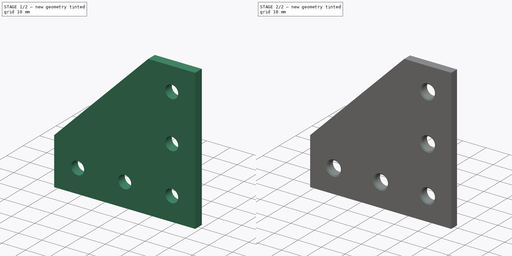
[diagram: build sequence overview — one tinted view per stage of 2, left to right]
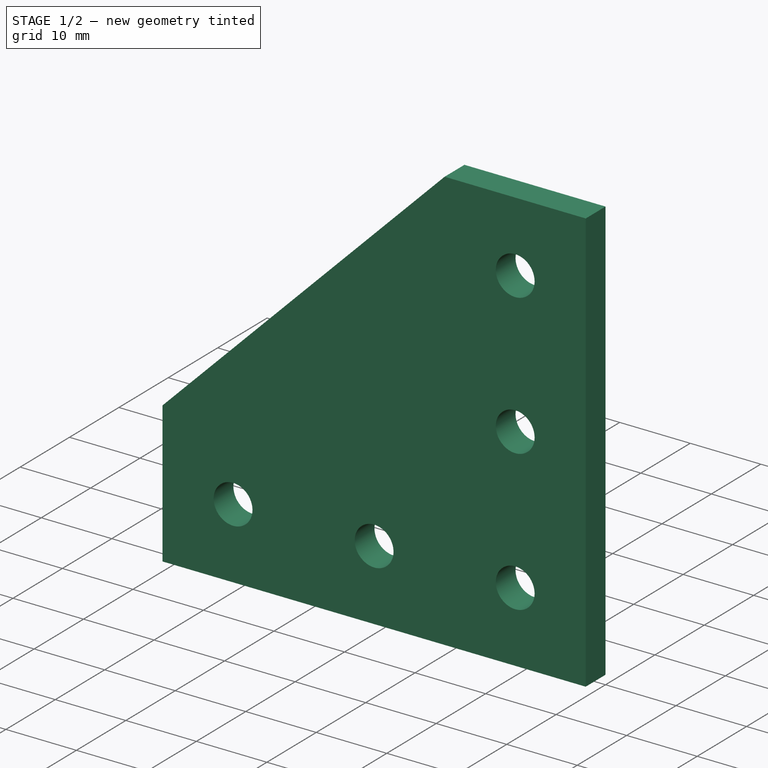
[diagram: stage 1 of 2 — iso view after this stage's code; geometry added in this stage tinted green]
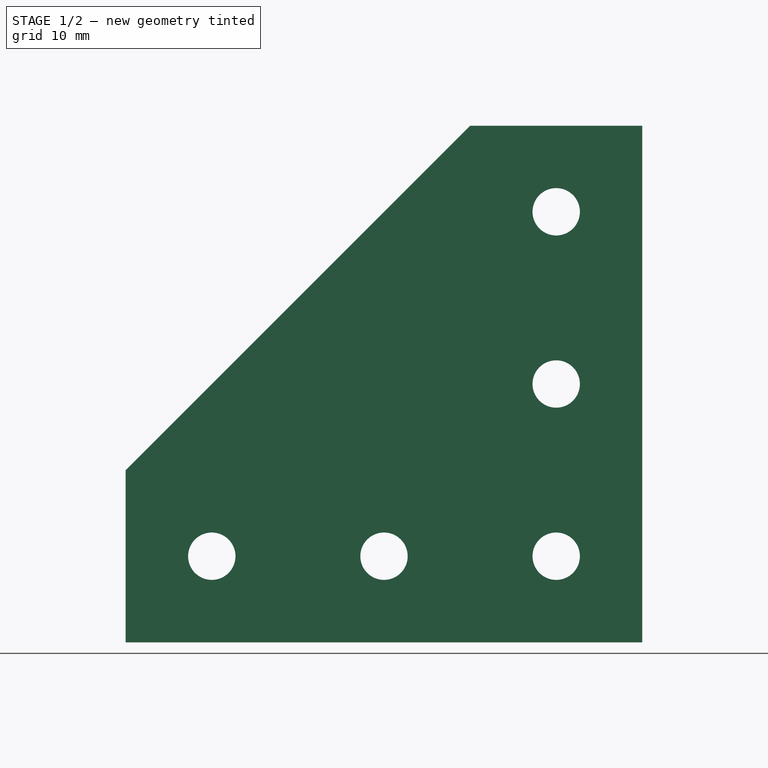
[diagram: stage 1 of 2 — front view after this stage's code; geometry added in this stage tinted green]
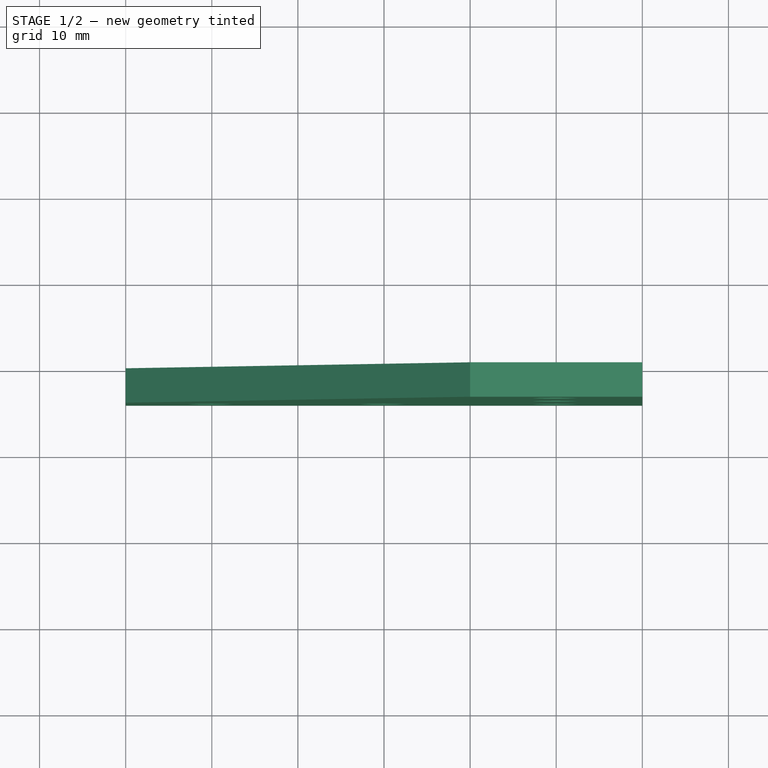
[diagram: stage 1 of 2 — top view after this stage's code; geometry added in this stage tinted green]
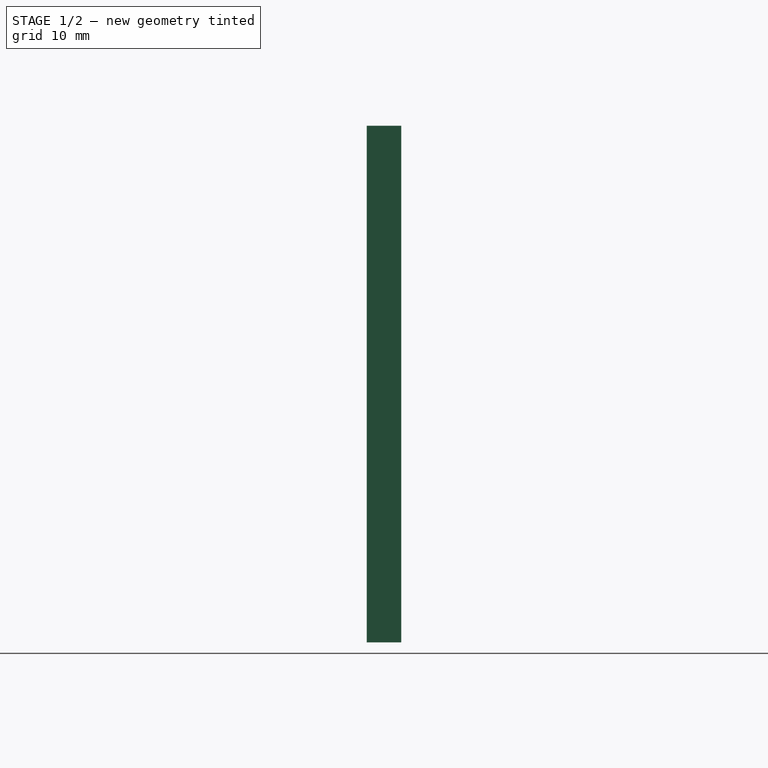
[diagram: stage 1 of 2 — right view after this stage's code; geometry added in this stage tinted green]
FCSTD DOCUMENT  (FreeCAD 0.20R26554 (Git))
Label: L_shaped_5_holes
Comment: This model is licensed under CC-BY 3.0.\n\nDon´t forget to share your modifications with the community.
License: Creative Commons Attribution
LicenseURL: http://creativecommons.org/licenses/by/4.0/
objects: Sketcher::SketchObject×1, PartDesign::Pad×1, PartDesign::Chamfer×1, PartDesign::Body×1
note: 6 computed .brp shape members not serialized (recipe doc carries the construction recipe); baked Part::Feature solids carry a one-line shape summary decoded from their .brp

FEATURE [Sketcher::SketchObject] Sketch
  FullyConstrained = true
  MapMode = 5
  Placement = pos=(0,0,0) rot=(1,0,0;1.5708rad)
  Support = -> [XZ_Plane]
  sketch-geometry (14):
    g0: LineSegment StartX=-50 StartY=0 StartZ=0 EndX=10 EndY=0 EndZ=0
    g1: LineSegment StartX=10 StartY=60 StartZ=0 EndX=-10 EndY=60 EndZ=0
    g2: LineSegment StartX=-10 StartY=60 StartZ=0 EndX=-50 EndY=20 EndZ=0
    g3: LineSegment StartX=-50 StartY=20 StartZ=0 EndX=-50 EndY=0 EndZ=0
    g4: Circle CenterX=0 CenterY=50 CenterZ=0 NormalX=0 NormalY=0 NormalZ=1 AngleXU=0 Radius=2.75
    g5: Circle CenterX=0 CenterY=30 CenterZ=0 NormalX=0 NormalY=0 NormalZ=1 AngleXU=0 Radius=2.75
    g6: Circle CenterX=0 CenterY=10 CenterZ=0 NormalX=0 NormalY=0 NormalZ=1 AngleXU=0 Radius=2.75
    g7: Circle CenterX=-20 CenterY=10 CenterZ=0 NormalX=0 NormalY=0 NormalZ=1 AngleXU=0 Radius=2.75
    g8: LineSegment StartX=-20 StartY=10 StartZ=0 EndX=0 EndY=10 EndZ=0
    g9: LineSegment StartX=0 StartY=10 StartZ=0 EndX=0 EndY=30 EndZ=0
    g10: LineSegment StartX=0 StartY=50 StartZ=0 EndX=0 EndY=30 EndZ=0
    g11: LineSegment StartX=-20 StartY=10 StartZ=0 EndX=-40 EndY=10 EndZ=0
    g12: Circle CenterX=-40 CenterY=10 CenterZ=0 NormalX=0 NormalY=0 NormalZ=1 AngleXU=0 Radius=2.75
    g13: LineSegment StartX=10 StartY=60 StartZ=0 EndX=10 EndY=0 EndZ=0
  constraints (38):
    c: PointOnObject(g0,g-1)
    c: PointOnObject(g0,g-1)
    c: Coincident(g1,g2)
    c: Coincident(g2,g3)
    c: Coincident(g3,g0)
    c: Vertical(g3)
    c: Horizontal(g1)
    c: DistanceX(g1,g1) = 20
    c: DistanceX(g0,g0) = 60
    c: PointOnObject(g4,g-2)
    c: PointOnObject(g5,g-2)
    c: PointOnObject(g6,g-2)
    c: Horizontal(g7,g6)
    c: Equal(g4,g5)
    c: Equal(g5,g6)
    c: Diameter(g4) = 5.5
    c: DistanceX(g7,g6) = 20
    c: Coincident(g8,g7)
    c: Coincident(g8,g6)
    c: Coincident(g9,g6)
    c: Coincident(g9,g5)
    c: Coincident(g10,g4)
    c: Coincident(g10,g5)
    c: Equal(g10,g9)
    c: Coincident(g11,g7)
    c: Horizontal(g11)
    c: Coincident(g12,g11)
    c: Equal(g7,g12)
    c: Equal(g8,g11)
    c: Coincident(g13,g1)
    c: Coincident(g13,g0)
    c: Vertical(g13)
    c: DistanceY(g-1,g6) = 10
    c: DistanceX(g-1,g0) = 10
    c: Equal(g9,g8)
    c: Equal(g12,g6)
    c: Equal(g1,g3)
    c: Equal(g13,g0)
FEATURE [PartDesign::Pad] Pad
  Direction = (0,-1,2e-16)
  Length = 4
  Length2 = 100
  Placement = pos=(0,0,0) rot=(1,0,0;1.5708rad)
  Profile = -> Sketch
  ReferenceAxis = -> Sketch [N_Axis]
  Type = 0
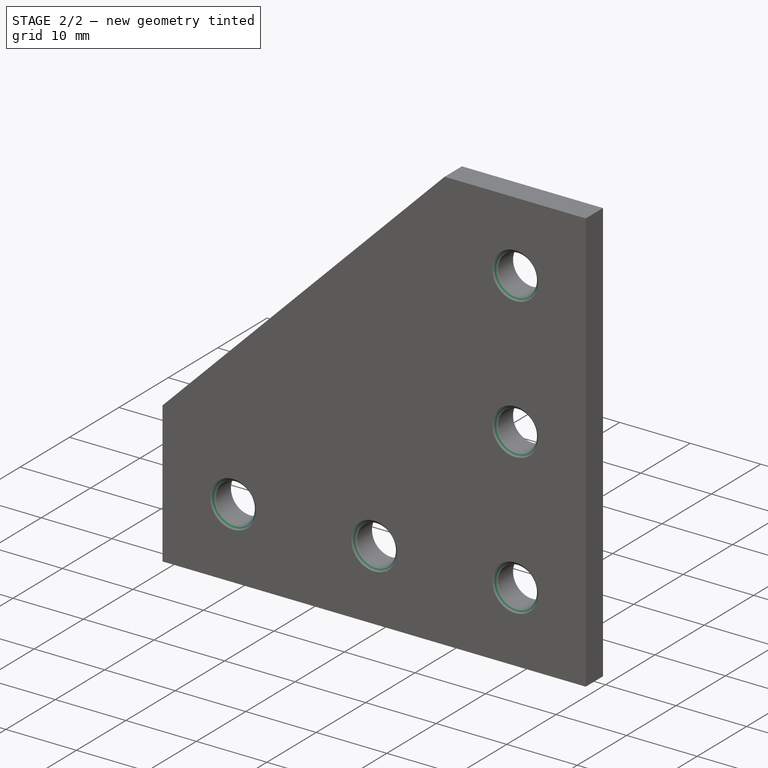
[diagram: stage 2 of 2 — iso view after this stage's code; geometry added in this stage tinted green]
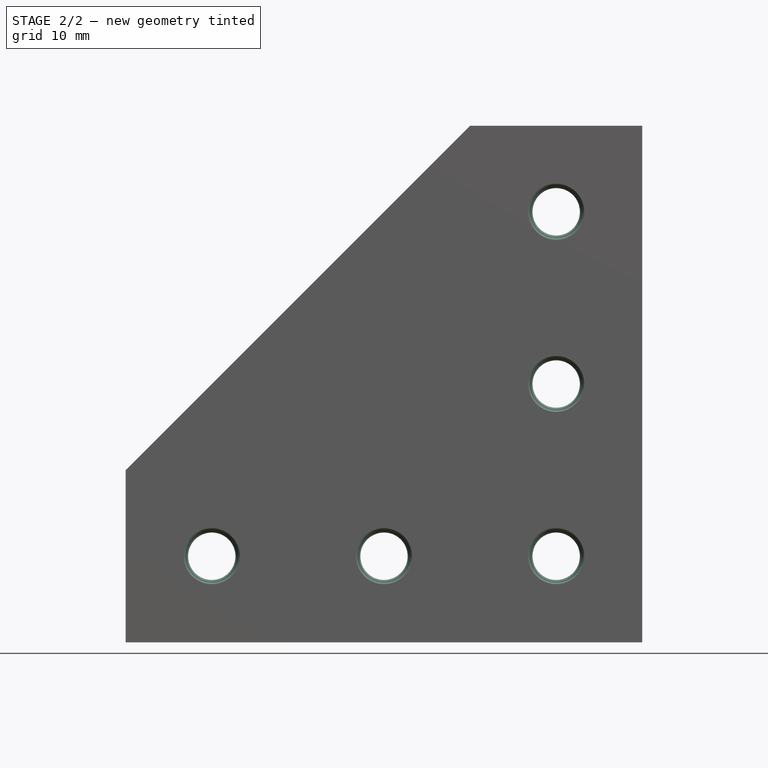
[diagram: stage 2 of 2 — front view after this stage's code; geometry added in this stage tinted green]
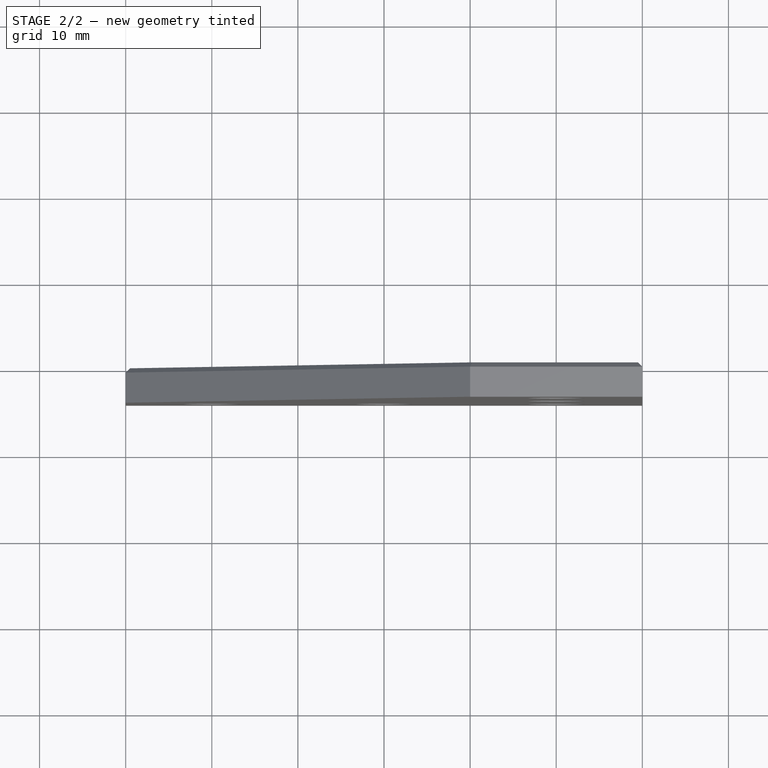
[diagram: stage 2 of 2 — top view after this stage's code; geometry added in this stage tinted green]
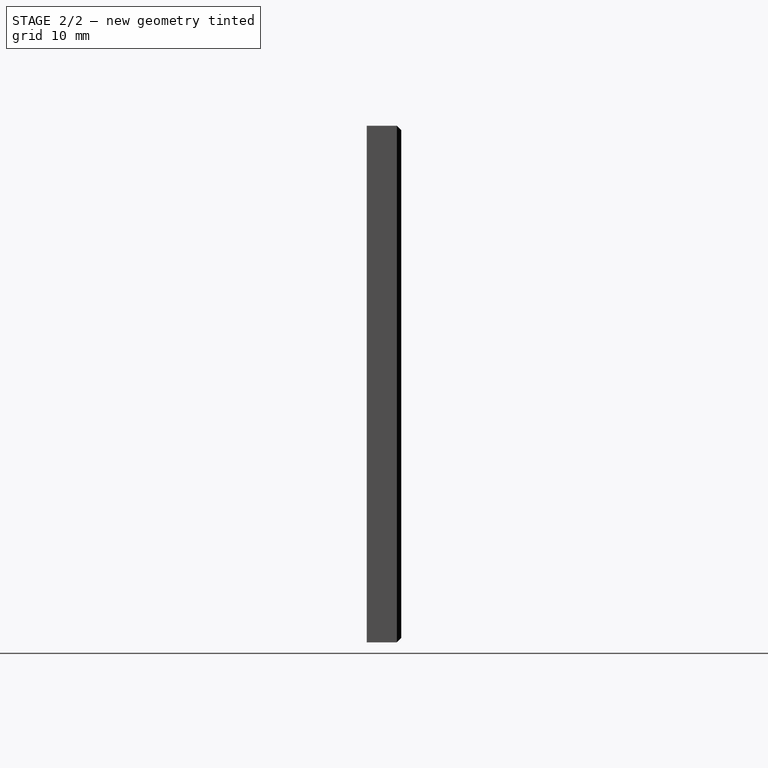
[diagram: stage 2 of 2 — right view after this stage's code; geometry added in this stage tinted green]
FEATURE [PartDesign::Chamfer] Chamfer
  Angle = 45
  Base = -> Pad [Face7,Face9,Face8,Face11,Face10,Face6]
  BaseFeature = -> Pad
  ChamferType = 0
  FlipDirection = false
  Placement = pos=(0,0,0) rot=(1,0,0;1.5708rad)
  Size = 0.5
  Size2 = 1
  SupportTransform = false
FEATURE [PartDesign::Body] Body  label="Plate"
  Group = -> [Sketch,Pad,Chamfer]
  Origin = -> Origin
  Tip = -> Chamfer
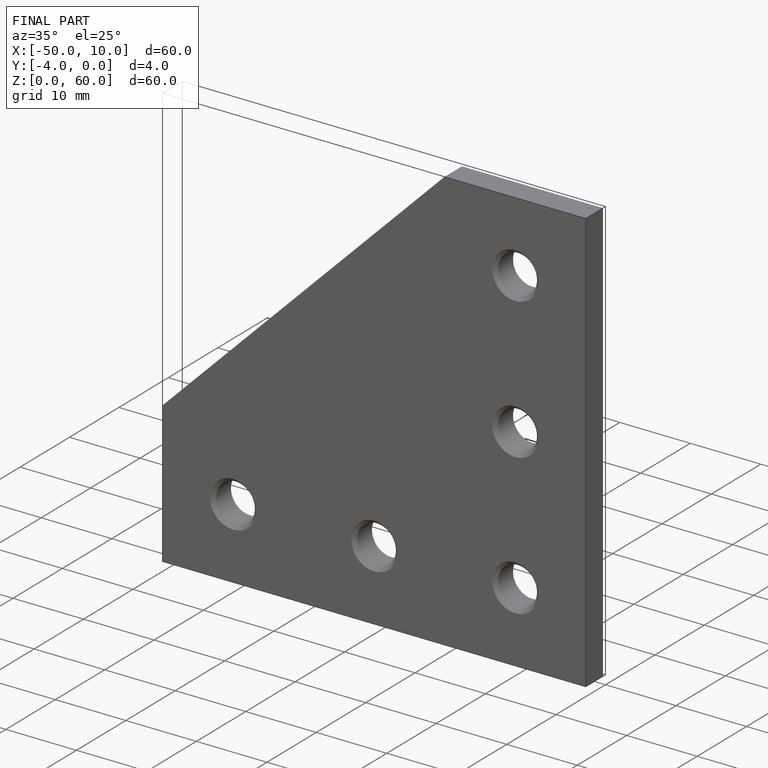
[diagram: finished part — iso view with bounding-box wireframe]
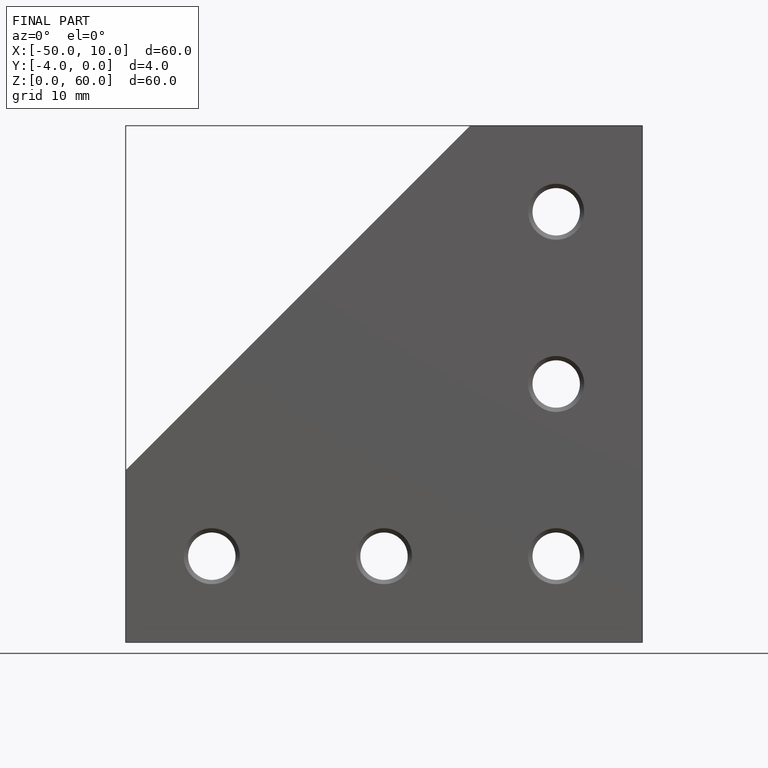
[diagram: finished part — front view with bounding-box wireframe]
